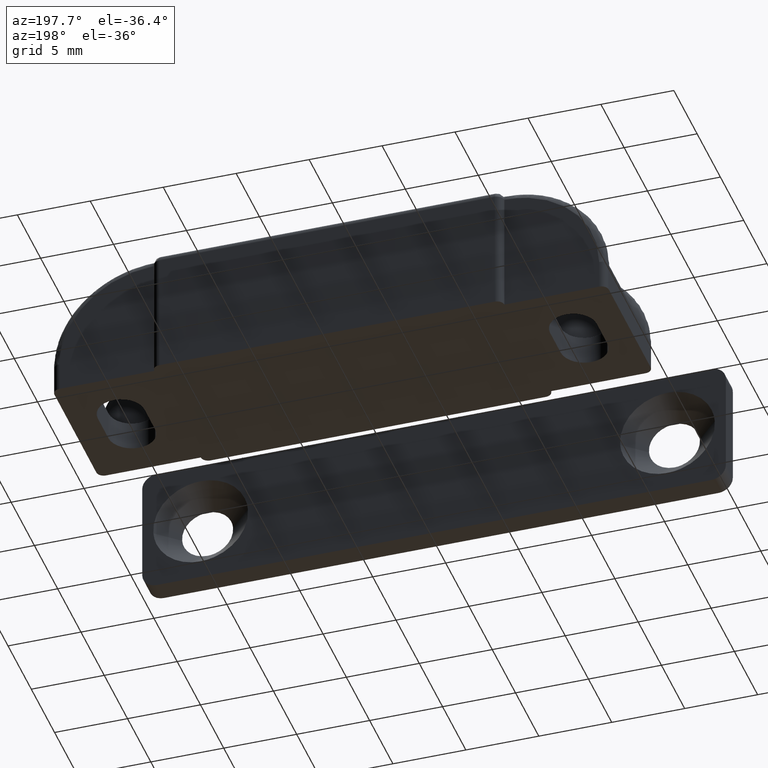
[diagram: clean part render]
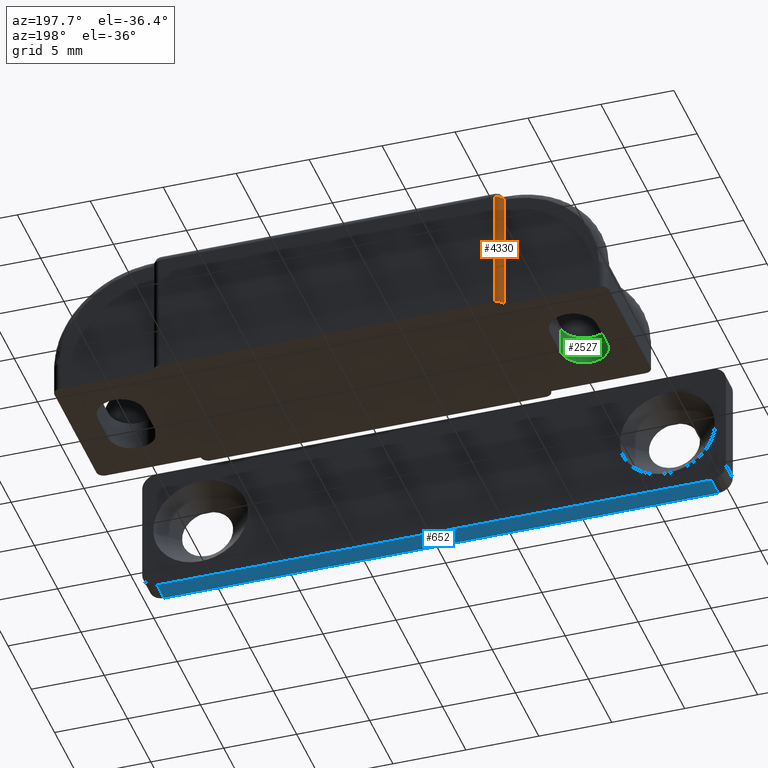
[diagram: same view with three faces highlighted in distinct colors, each labeled with its STEP entity id]
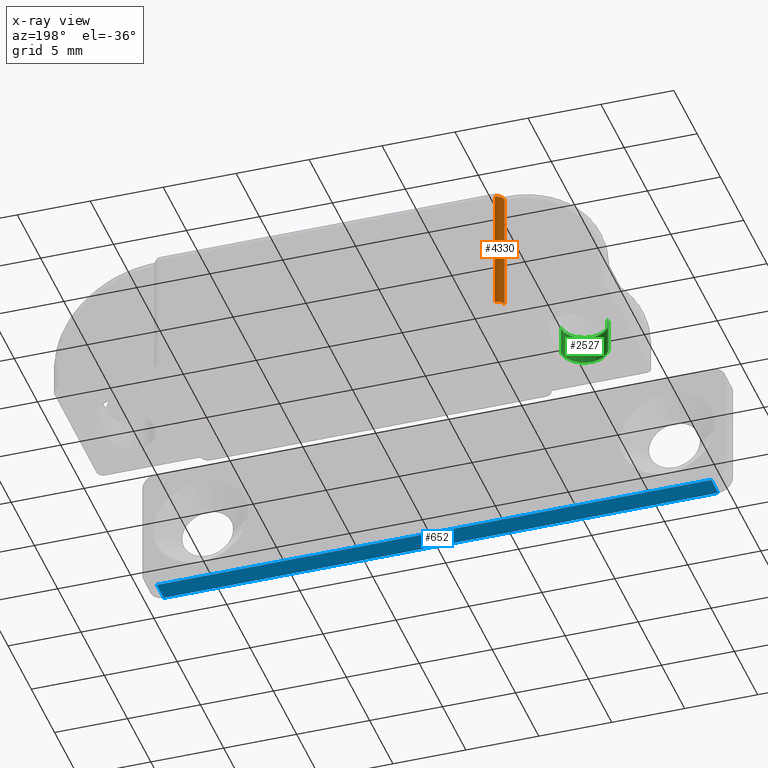
[diagram: x-ray of the same camera — body ghosted, the three highlighted faces saturated]
A machine part, auxiliary view with three faces highlighted in distinct colors.
The next image is the same camera in x-ray (body ghosted, the three faces saturated) — at least one of them is partly hidden behind the body in this view.
Their STEP definitions:

[orange] entity #4330 — the highlighted face is a freeform B-spline surface patch.
#4160=CARTESIAN_POINT('',(-11.500000000000000,5.500000000000000,8.500000000000000));
#4161=VERTEX_POINT('',#4160);
#4254=CARTESIAN_POINT('',(-12.0,5.0,8.500000000000000));
#4255=VERTEX_POINT('',#4254);
#4256=CARTESIAN_POINT('',(-11.500000000000000,5.500000000000000,8.500000000000000));
#4257=CARTESIAN_POINT('',(-12.0,5.500000000000001,8.500000000000002));
#4258=CARTESIAN_POINT('',(-12.0,5.0,8.500000000000000));
#4266=(BOUNDED_CURVE()B_SPLINE_CURVE(2,(#4256,#4257,#4258),.UNSPECIFIED.,.F.,.U.)CURVE()GEOMETRIC_REPRESENTATION_ITEM()QUASI_UNIFORM_CURVE()RATIONAL_B_SPLINE_CURVE((1.0,0.707106781186548,1.0))REPRESENTATION_ITEM(''));
#4267=EDGE_CURVE('',#4161,#4255,#4266,.T.);
#4286=CARTESIAN_POINT('',(-11.999980961532090,4.995636732250813,-0.212500000000000));
#4287=CARTESIAN_POINT('',(-11.999980961532090,4.995636732250813,8.717812500000003));
#4288=CARTESIAN_POINT('',(-12.004659993339773,5.531800671005875,-0.212500000000000));
#4289=CARTESIAN_POINT('',(-12.004659993339773,5.531800671005875,8.717812500000003));
#4290=CARTESIAN_POINT('',(-11.469475730232570,5.499067399210933,-0.212500000000000));
#4291=CARTESIAN_POINT('',(-11.469475730232570,5.499067399210933,8.717812500000003));
#4299=(BOUNDED_SURFACE()B_SPLINE_SURFACE(1,2,((#4286,#4288,#4290),(#4287,#4289,#4291)),.UNSPECIFIED.,.F.,.F.,.U.)B_SPLINE_SURFACE_WITH_KNOTS((2,2),(3,3),(0.0,8.930312500000003),(0.0,1.0),.UNSPECIFIED.)GEOMETRIC_REPRESENTATION_ITEM()RATIONAL_B_SPLINE_SURFACE(((1.0,0.681998360062499,1.0),(1.0,0.681998360062499,1.0)))REPRESENTATION_ITEM('')SURFACE());
#4300=CARTESIAN_POINT('',(-12.0,5.0,0.0));
#4301=VERTEX_POINT('',#4300);
#4302=CARTESIAN_POINT('',(-11.500000000000000,5.500000000000000,0.0));
#4303=VERTEX_POINT('',#4302);
#4304=CARTESIAN_POINT('',(-12.0,5.0,0.0));
#4305=CARTESIAN_POINT('',(-12.0,5.500000000000001,0.0));
#4306=CARTESIAN_POINT('',(-11.500000000000000,5.500000000000000,0.0));
#4314=(BOUNDED_CURVE()B_SPLINE_CURVE(2,(#4304,#4305,#4306),.UNSPECIFIED.,.F.,.U.)CURVE()GEOMETRIC_REPRESENTATION_ITEM()QUASI_UNIFORM_CURVE()RATIONAL_B_SPLINE_CURVE((1.0,0.707106781186548,1.0))REPRESENTATION_ITEM(''));
#4315=EDGE_CURVE('',#4301,#4303,#4314,.T.);
#4316=ORIENTED_EDGE('',*,*,#4315,.F.);
#4317=CARTESIAN_POINT('',(-12.0,5.0,0.0));
#4318=CARTESIAN_POINT('',(-12.0,5.0,8.500000000000000));
#4319=QUASI_UNIFORM_CURVE('',1,(#4317,#4318),.UNSPECIFIED.,.F.,.U.);
#4320=EDGE_CURVE('',#4301,#4255,#4319,.T.);
#4321=ORIENTED_EDGE('',*,*,#4320,.T.);
#4322=ORIENTED_EDGE('',*,*,#4267,.F.);
#4323=CARTESIAN_POINT('',(-11.500000000000000,5.500000000000000,0.0));
#4324=CARTESIAN_POINT('',(-11.500000000000000,5.500000000000000,8.500000000000000));
#4325=QUASI_UNIFORM_CURVE('',1,(#4323,#4324),.UNSPECIFIED.,.F.,.U.);
#4326=EDGE_CURVE('',#4303,#4161,#4325,.T.);
#4327=ORIENTED_EDGE('',*,*,#4326,.F.);
#4328=EDGE_LOOP('',(#4316,#4321,#4322,#4327));
#4329=FACE_OUTER_BOUND('',#4328,.T.);
#4330=ADVANCED_FACE('',(#4329),#4299,.T.);

[blue] entity #652 — the highlighted face is a freeform B-spline surface patch.
#446=CARTESIAN_POINT('',(-18.999999999997200,-19.0,0.0));
#447=VERTEX_POINT('',#446);
#468=CARTESIAN_POINT('',(-18.999999999997200,-17.500000000000000,0.0));
#469=VERTEX_POINT('',#468);
#483=CARTESIAN_POINT('',(-18.999999999997200,-19.0,0.0));
#484=CARTESIAN_POINT('',(-18.999999999997200,-17.500000000000000,0.0));
#485=QUASI_UNIFORM_CURVE('',1,(#483,#484),.UNSPECIFIED.,.F.,.U.);
#486=EDGE_CURVE('',#447,#469,#485,.T.);
#507=CARTESIAN_POINT('',(18.999999999999751,-17.500000000000000,0.0));
#508=VERTEX_POINT('',#507);
#529=CARTESIAN_POINT('',(18.999999999999751,-19.0,0.0));
#530=VERTEX_POINT('',#529);
#544=CARTESIAN_POINT('',(18.999999999999751,-17.500000000000000,0.0));
#545=CARTESIAN_POINT('',(18.999999999999751,-19.0,0.0));
#546=QUASI_UNIFORM_CURVE('',1,(#544,#545),.UNSPECIFIED.,.F.,.U.);
#547=EDGE_CURVE('',#508,#530,#546,.T.);
#633=CARTESIAN_POINT('',(-20.898099926345679,-17.425075002907288,0.0));
#634=CARTESIAN_POINT('',(20.898100945587650,-17.425075002907288,0.0));
#635=CARTESIAN_POINT('',(-20.898099926345679,-19.074925037325841,0.0));
#636=CARTESIAN_POINT('',(20.898100945587650,-19.074925037325841,0.0));
#637=B_SPLINE_SURFACE_WITH_KNOTS('',1,1,((#633,#635),(#634,#636)),.UNSPECIFIED.,.F.,.F.,.U.,(2,2),(2,2),(0.0,41.796200871933323),(0.041708334948495,0.958291687403247),.UNSPECIFIED.);
#638=CARTESIAN_POINT('',(-18.999999999997200,-17.500000000000000,0.0));
#639=CARTESIAN_POINT('',(18.999999999999751,-17.500000000000000,0.0));
#640=QUASI_UNIFORM_CURVE('',1,(#638,#639),.UNSPECIFIED.,.F.,.U.);
#641=EDGE_CURVE('',#469,#508,#640,.T.);
#642=ORIENTED_EDGE('',*,*,#641,.T.);
#643=ORIENTED_EDGE('',*,*,#547,.T.);
#644=CARTESIAN_POINT('',(18.999999999999751,-19.0,0.0));
#645=CARTESIAN_POINT('',(-18.999999999997200,-19.0,0.0));
#646=QUASI_UNIFORM_CURVE('',1,(#644,#645),.UNSPECIFIED.,.F.,.U.);
#647=EDGE_CURVE('',#530,#447,#646,.T.);
#648=ORIENTED_EDGE('',*,*,#647,.T.);
#649=ORIENTED_EDGE('',*,*,#486,.T.);
#650=EDGE_LOOP('',(#642,#643,#648,#649));
#651=FACE_OUTER_BOUND('',#650,.T.);
#652=ADVANCED_FACE('',(#651),#637,.T.);

[green] entity #2527 — the highlighted face is a freeform B-spline surface patch.
#2448=CARTESIAN_POINT('',(-17.099451719960911,-1.108116882715041,2.050000000000000));
#2449=CARTESIAN_POINT('',(-17.099451719960911,-1.108116882715041,-0.051250000000000));
#2450=CARTESIAN_POINT('',(-17.143203395070127,-2.778925946829139,2.050000000000000));
#2451=CARTESIAN_POINT('',(-17.143203395070127,-2.778925946829139,-0.051250000000000));
#2452=CARTESIAN_POINT('',(-15.472076149699630,-2.749756312257127,2.050000000000000));
#2453=CARTESIAN_POINT('',(-15.472076149699630,-2.749756312257127,-0.051250000000000));
#2454=CARTESIAN_POINT('',(-13.800948904329115,-2.720586677685118,2.050000000000000));
#2455=CARTESIAN_POINT('',(-13.800948904329115,-2.720586677685118,-0.051250000000000));
#2456=CARTESIAN_POINT('',(-13.902984322525059,-1.052322336750422,2.050000000000000));
#2457=CARTESIAN_POINT('',(-13.902984322525059,-1.052322336750422,-0.051250000000000));
#2465=(BOUNDED_SURFACE()B_SPLINE_SURFACE(1,2,((#2448,#2450,#2452,#2454,#2456),(#2449,#2451,#2453,#2455,#2457)),.UNSPECIFIED.,.F.,.F.,.U.)B_SPLINE_SURFACE_WITH_KNOTS((2,2),(3,2,3),(0.0,2.101250000000000),(0.0,2.733132529706898,5.466265059413797),.UNSPECIFIED.)GEOMETRIC_REPRESENTATION_ITEM()RATIONAL_B_SPLINE_SURFACE(((1.0,0.691513055782269,1.0,0.691513055782269,1.0),(1.0,0.691513055782269,1.0,0.691513055782269,1.0)))REPRESENTATION_ITEM('')SURFACE());
#2466=CARTESIAN_POINT('',(-17.100000000000001,-1.150000000007640,0.0));
#2467=VERTEX_POINT('',#2466);
#2468=CARTESIAN_POINT('',(-13.900000000000000,-1.150000000006912,0.0));
#2469=VERTEX_POINT('',#2468);
#2470=CARTESIAN_POINT('',(-17.100000000000001,-1.150000000007640,0.0));
#2471=CARTESIAN_POINT('',(-17.100040988598771,-1.287441685252240,0.0));
#2472=CARTESIAN_POINT('',(-17.067753014619210,-1.536125294180685,0.0));
#2473=CARTESIAN_POINT('',(-16.944228259398070,-1.862295703396589,0.0));
#2474=CARTESIAN_POINT('',(-16.780555107190839,-2.124305087709373,0.0));
#2475=CARTESIAN_POINT('',(-16.576135504809720,-2.347083812577864,0.0));
#2476=CARTESIAN_POINT('',(-16.322579745443392,-2.535129789450804,0.0));
#2477=CARTESIAN_POINT('',(-15.982527184991021,-2.693486368918110,0.0));
#2478=CARTESIAN_POINT('',(-15.605289732493020,-2.763696472741763,0.0));
#2479=CARTESIAN_POINT('',(-15.191633019107330,-2.735732349305971,0.0));
#2480=CARTESIAN_POINT('',(-14.832751083427571,-2.622032880122164,0.0));
#2481=CARTESIAN_POINT('',(-14.490758969278060,-2.411305961802728,0.0));
#2482=CARTESIAN_POINT('',(-14.244955664317519,-2.162463017275495,0.0));
#2483=CARTESIAN_POINT('',(-14.079804536751190,-1.901583526505456,0.0));
#2484=CARTESIAN_POINT('',(-13.942735561330190,-1.581899941007374,0.0));
#2485=CARTESIAN_POINT('',(-13.899877883118791,-1.326731169883508,0.0));
#2486=CARTESIAN_POINT('',(-13.900000000000000,-1.150000000006912,0.0));
#2487=B_SPLINE_CURVE_WITH_KNOTS('',3,(#2470,#2471,#2472,#2473,#2474,#2475,#2476,#2477,#2478,#2479,#2480,#2481,#2482,#2483,#2484,#2485,#2486),.UNSPECIFIED.,.F.,.U.,(4,1,1,1,1,1,1,1,1,1,1,1,1,1,4),(0.000000158450987,0.412314147509828,0.746121919246989,1.040658755774397,1.335188713684094,1.649354973929300,1.983153047863771,2.454385654161720,2.788175038422615,3.220148056169178,3.573578841615523,3.985927532316835,4.260823916936941,4.496443032138838,5.026579785246688),.UNSPECIFIED.);
#2488=EDGE_CURVE('',#2467,#2469,#2487,.T.);
#2489=ORIENTED_EDGE('',*,*,#2488,.F.);
#2490=CARTESIAN_POINT('',(-17.100000000000001,-1.150000000006912,2.0));
#2491=VERTEX_POINT('',#2490);
#2492=CARTESIAN_POINT('',(-17.100000000000001,-1.150000000006912,2.0));
#2493=CARTESIAN_POINT('',(-17.100000000000001,-1.150000000007640,0.0));
#2494=QUASI_UNIFORM_CURVE('',1,(#2492,#2493),.UNSPECIFIED.,.F.,.U.);
#2495=EDGE_CURVE('',#2491,#2467,#2494,.T.);
#2496=ORIENTED_EDGE('',*,*,#2495,.F.);
#2497=CARTESIAN_POINT('',(-13.899999999999860,-1.150000000006514,2.0));
#2498=VERTEX_POINT('',#2497);
#2499=CARTESIAN_POINT('',(-17.100000000000001,-1.150000000006912,2.0));
#2500=CARTESIAN_POINT('',(-17.100021470231020,-1.267807095503487,2.000000000000002));
#2501=CARTESIAN_POINT('',(-17.076035458505959,-1.483779817403818,2.0));
#2502=CARTESIAN_POINT('',(-16.974874779981519,-1.796464671938940,2.0));
#2503=CARTESIAN_POINT('',(-16.833699444918139,-2.049268990334480,2.000000000000007));
#2504=CARTESIAN_POINT('',(-16.658824394080540,-2.262336601175125,1.999999999999990));
#2505=CARTESIAN_POINT('',(-16.453368895597201,-2.446275857122574,2.000000000000005));
#2506=CARTESIAN_POINT('',(-16.166583794577178,-2.620610505431310,1.999999999999993));
#2507=CARTESIAN_POINT('',(-15.840083296679399,-2.726243669063104,2.000000000000029));
#2508=CARTESIAN_POINT('',(-15.473961026318049,-2.762296701684058,1.999999999999969));
#2509=CARTESIAN_POINT('',(-15.165896542662830,-2.726231352226646,1.999999999999965));
#2510=CARTESIAN_POINT('',(-14.860559423981400,-2.625320767084775,2.000000000000091));
#2511=CARTESIAN_POINT('',(-14.570535971383309,-2.470356609188564,1.999999999999794));
#2512=CARTESIAN_POINT('',(-14.288506844590120,-2.220982035285227,2.000000000000034));
#2513=CARTESIAN_POINT('',(-14.081633412602310,-1.915391551466428,2.0));
#2514=CARTESIAN_POINT('',(-13.937911920185559,-1.562291072739016,2.000000000000009));
#2515=CARTESIAN_POINT('',(-13.899930617937139,-1.307086880546720,1.999999999999972));
#2516=CARTESIAN_POINT('',(-13.899999999999860,-1.150000000006514,2.0));
#2517=B_SPLINE_CURVE_WITH_KNOTS('',3,(#2499,#2500,#2501,#2502,#2503,#2504,#2505,#2506,#2507,#2508,#2509,#2510,#2511,#2512,#2513,#2514,#2515,#2516),.UNSPECIFIED.,.F.,.U.,(4,1,1,1,1,1,1,1,1,1,1,1,1,1,1,4),(0.000000131250338,0.353417726541274,0.647954472232448,0.981754749802445,1.217375459213047,1.472645027010247,1.806423614721166,2.218755727930839,2.493654353879165,2.906002735726790,3.141629285085148,3.455759335760585,3.887739865400255,4.260812684115226,4.555346127679661,5.026579785235133),.UNSPECIFIED.);
#2518=EDGE_CURVE('',#2491,#2498,#2517,.T.);
#2519=ORIENTED_EDGE('',*,*,#2518,.T.);
#2520=CARTESIAN_POINT('',(-13.899999999999860,-1.150000000006514,2.0));
#2521=CARTESIAN_POINT('',(-13.900000000000000,-1.150000000006912,0.0));
#2522=QUASI_UNIFORM_CURVE('',1,(#2520,#2521),.UNSPECIFIED.,.F.,.U.);
#2523=EDGE_CURVE('',#2498,#2469,#2522,.T.);
#2524=ORIENTED_EDGE('',*,*,#2523,.T.);
#2525=EDGE_LOOP('',(#2489,#2496,#2519,#2524));
#2526=FACE_OUTER_BOUND('',#2525,.T.);
#2527=ADVANCED_FACE('',(#2526),#2465,.F.);